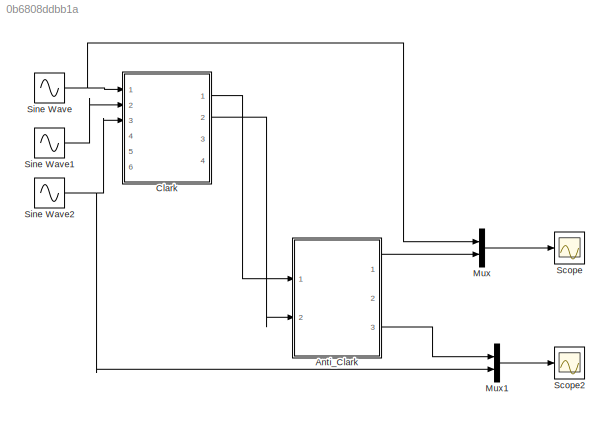
MODEL slx_0b6808ddbb1a
KIND model
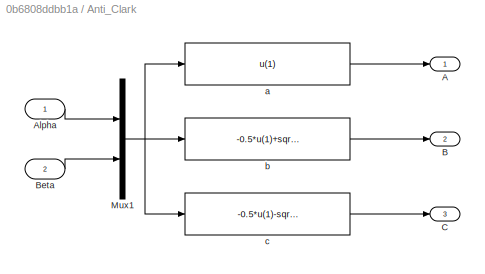
BLOCK [SubSystem] Anti_Clark
  Ports = [2, 3]
  RequestExecContextInheritance = off
BLOCK [Outport] Anti_Clark/A
  IconDisplay = Port number
BLOCK [Inport] Anti_Clark/Alpha
  IconDisplay = Port number
BLOCK [Outport] Anti_Clark/B
  IconDisplay = Port number
  Port = 2
BLOCK [Inport] Anti_Clark/Beta
  IconDisplay = Port number
  Port = 2
BLOCK [Outport] Anti_Clark/C
  IconDisplay = Port number
  Port = 3
BLOCK [Mux] Anti_Clark/Mux1
  DisplayOption = bar
  Inputs = 2
  Ports = [2, 1]
BLOCK [Fcn] Anti_Clark/a
  Expr = u(1)
BLOCK [Fcn] Anti_Clark/b
  Expr = -0.5*u(1)+sqrt(3)/2*u(2)
BLOCK [Fcn] Anti_Clark/c
  Expr = -0.5*u(1)-sqrt(3)/2*u(2)
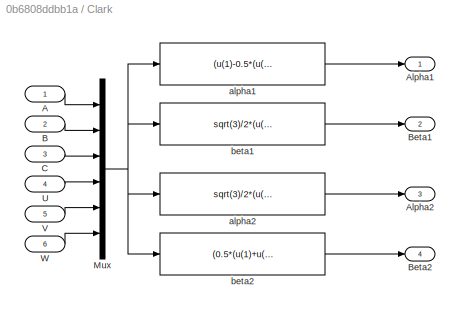
BLOCK [SubSystem] Clark
  Ports = [6, 4]
  RequestExecContextInheritance = off
BLOCK [Inport] Clark/A
  IconDisplay = Port number
BLOCK [Outport] Clark/Alpha1
  IconDisplay = Port number
BLOCK [Outport] Clark/Alpha2
  IconDisplay = Port number
  Port = 3
BLOCK [Inport] Clark/B
  IconDisplay = Port number
  Port = 2
BLOCK [Outport] Clark/Beta1
  IconDisplay = Port number
  Port = 2
BLOCK [Outport] Clark/Beta2
  IconDisplay = Port number
  Port = 4
BLOCK [Inport] Clark/C
  IconDisplay = Port number
  Port = 3
BLOCK [Mux] Clark/Mux
  DisplayOption = bar
  Inputs = 6
  Ports = [6, 1]
BLOCK [Inport] Clark/U
  IconDisplay = Port number
  Port = 4
BLOCK [Inport] Clark/V
  IconDisplay = Port number
  Port = 5
BLOCK [Inport] Clark/W
  IconDisplay = Port number
  Port = 6
BLOCK [Fcn] Clark/alpha1
  Expr = (u(1)-0.5*(u(2)+u(3)))*2/3
BLOCK [Fcn] Clark/alpha2
  Expr = sqrt(3)/2*(u(1)-u(2))*2/3
BLOCK [Fcn] Clark/beta1
  Expr = sqrt(3)/2*(u(2)-u(3))*2/3
BLOCK [Fcn] Clark/beta2
  Expr = (0.5*(u(1)+u(2))-u(3))*2/3
BLOCK [Mux] Mux
  DisplayOption = bar
  Inputs = 2
  Ports = [2, 1]
BLOCK [Mux] Mux1
  DisplayOption = bar
  Inputs = 2
  Ports = [2, 1]
BLOCK [Scope] Scope
  Floating = off
  LimitDataPoints = off
  NumInputPorts = 1
  Ports = [1]
  ShowLegends = off
  YMax = 150
  YMin = -150
  ZoomMode = xonly
BLOCK [Scope] Scope2
  Floating = off
  LimitDataPoints = off
  NumInputPorts = 1
  Ports = [1]
  SaveName = ScopeData2
  ShowLegends = off
  YMax = 150
  YMin = -150
  ZoomMode = xonly
BLOCK [Sin] Sine Wave
  Amplitude = 100
  Frequency = 2*pi*50
  Ports = [0, 1]
  SampleTime = 10e-6
BLOCK [Sin] Sine Wave1
  Amplitude = 100
  Frequency = 2*pi*50
  Phase = -2/3*pi
  Ports = [0, 1]
  SampleTime = 10e-6
BLOCK [Sin] Sine Wave2
  Amplitude = 100
  Frequency = 2*pi*50
  Phase = 2/3*pi
  Ports = [0, 1]
  SampleTime = 10e-6
LINE Anti_Clark/Alpha:1 -> Anti_Clark/Mux1:1
LINE Anti_Clark/Beta:1 -> Anti_Clark/Mux1:2
NET Anti_Clark/Mux1:1 -> Anti_Clark/a:1, Anti_Clark/b:1, Anti_Clark/c:1
LINE Anti_Clark/a:1 -> Anti_Clark/A:1
LINE Anti_Clark/b:1 -> Anti_Clark/B:1
LINE Anti_Clark/c:1 -> Anti_Clark/C:1
LINE Anti_Clark:1 -> Mux:2
LINE Anti_Clark:3 -> Mux1:1
LINE Clark/A:1 -> Clark/Mux:1
LINE Clark/B:1 -> Clark/Mux:2
LINE Clark/C:1 -> Clark/Mux:3
NET Clark/Mux:1 -> Clark/alpha1:1, Clark/alpha2:1, Clark/beta1:1, Clark/beta2:1
LINE Clark/U:1 -> Clark/Mux:4
LINE Clark/V:1 -> Clark/Mux:5
LINE Clark/W:1 -> Clark/Mux:6
LINE Clark/alpha1:1 -> Clark/Alpha1:1
LINE Clark/alpha2:1 -> Clark/Alpha2:1
LINE Clark/beta1:1 -> Clark/Beta1:1
LINE Clark/beta2:1 -> Clark/Beta2:1
LINE Clark:1 -> Anti_Clark:1
LINE Clark:2 -> Anti_Clark:2
LINE Mux1:1 -> Scope2:1
LINE Mux:1 -> Scope:1
LINE Sine Wave1:1 -> Clark:2
NET Sine Wave2:1 -> Clark:3, Mux1:2
NET Sine Wave:1 -> Clark:1, Mux:1
note: NET lines group one-source signal fan-out (src -> all destinations, sorted); 1:1 wires keep LINE
